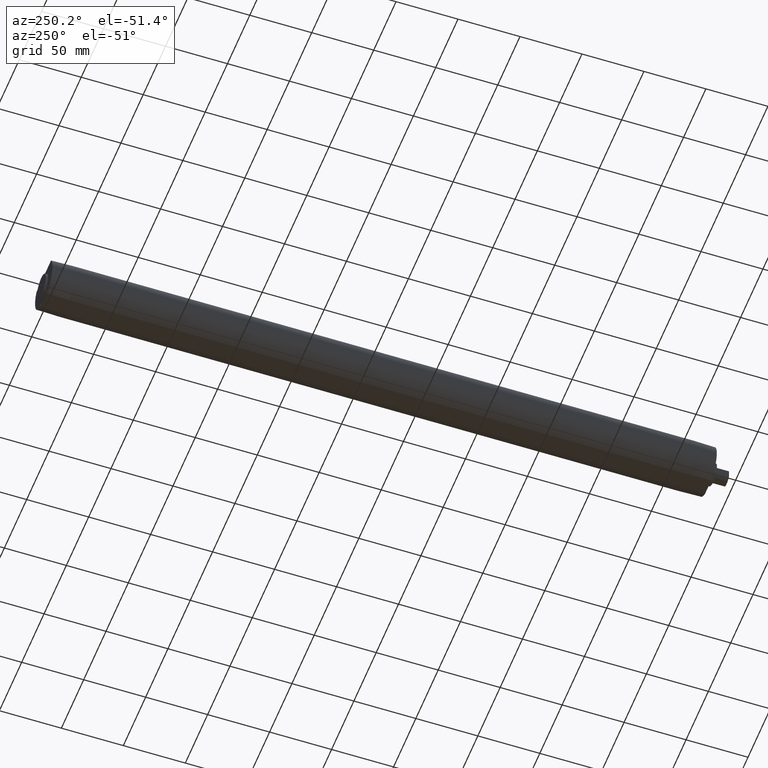
[diagram: clean part render]
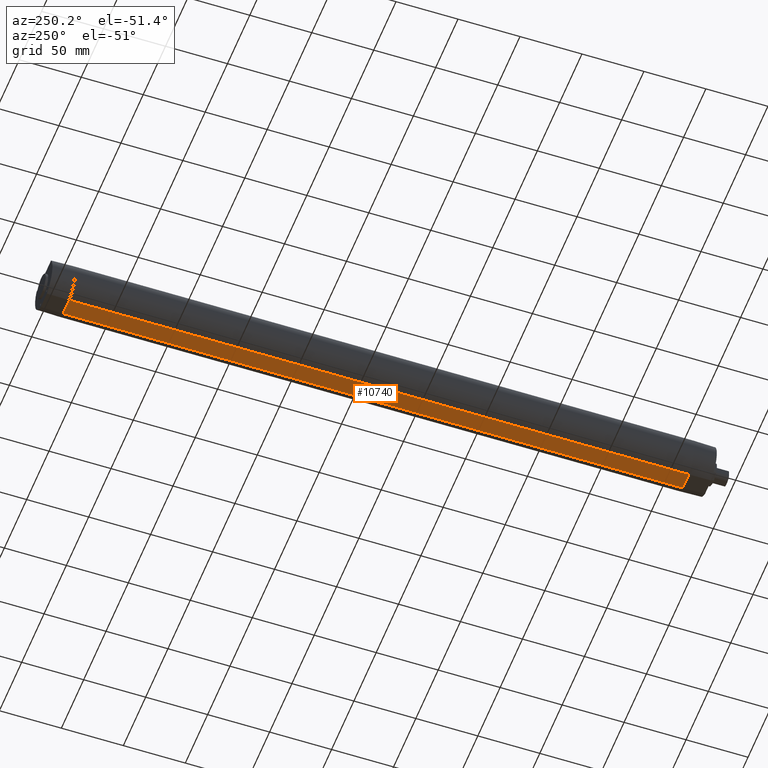
[diagram: same view with one face highlighted and labeled with its STEP entity id]
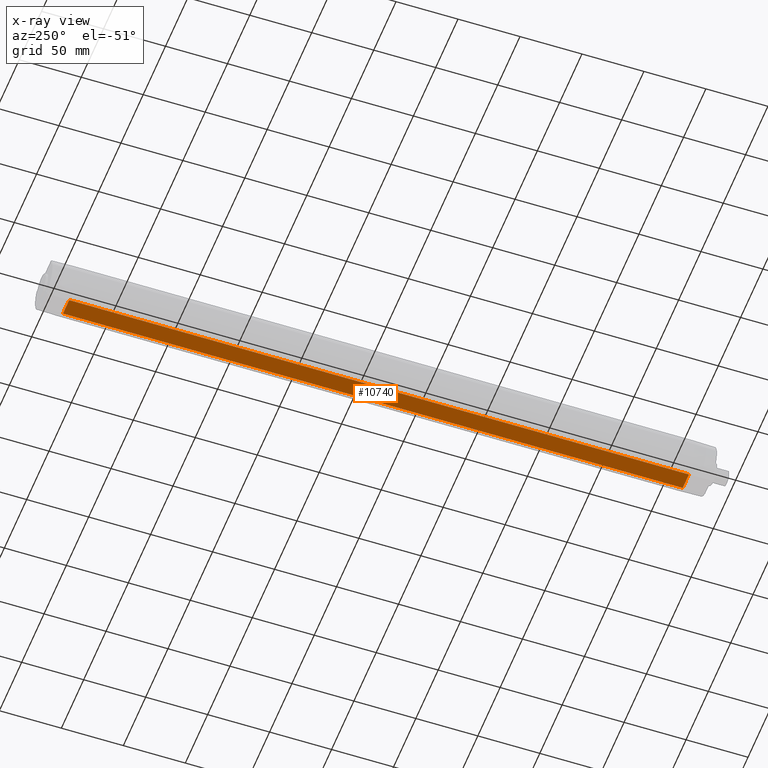
[diagram: x-ray of the same camera — body ghosted, the highlighted face saturated]
A machine part, auxiliary view. The second image highlights one B-rep face of the part: STEP entity #10740.
The next image is the same camera in x-ray: the body ghosted, the highlighted face saturated — about 0% of this face is hidden behind the body in this view.
In plain terms, the highlighted planar face has unit normal (0, 0, -1).
Its self-contained STEP definition (entity closure, byte-faithful):
#5450=CARTESIAN_POINT('',(-6.95970545353755,-18.75,-250.));
#5460=VERTEX_POINT('',#5450);
#5640=CARTESIAN_POINT('',(-6.95970545353753,-18.75,250.));
#5650=VERTEX_POINT('',#5640);
#5680=CARTESIAN_POINT('',(-6.95970545353753,-18.75,-75.));
#5690=DIRECTION('',(0.,0.,1.));
#5700=VECTOR('',#5690,1.);
#5710=LINE('',#5680,#5700);
#5720=EDGE_CURVE('',#5460,#5650,#5710,.T.);
#10300=CARTESIAN_POINT('',(6.95970545353752,-18.75,-250.));
#10310=VERTEX_POINT('',#10300);
#10340=CARTESIAN_POINT('',(6.95970545353754,-18.75,75.));
#10350=DIRECTION('',(0.,0.,-1.));
#10360=VECTOR('',#10350,1.);
#10370=LINE('',#10340,#10360);
#10380=CARTESIAN_POINT('',(6.95970545353751,-18.75,250.));
#10390=VERTEX_POINT('',#10380);
#10400=EDGE_CURVE('',#10390,#10310,#10370,.T.);
#10530=CARTESIAN_POINT('',(-6.95970545353754,-18.75,-250.));
#10540=DIRECTION('',(0.,-1.,0.));
#10550=DIRECTION('',(0.,0.,-1.));
#10560=AXIS2_PLACEMENT_3D('',#10530,#10540,#10550);
#10570=PLANE('',#10560);
#10580=CARTESIAN_POINT('',(-6.95970545353754,-18.75,-250.));
#10590=DIRECTION('',(1.,0.,0.));
#10600=VECTOR('',#10590,1.);
#10610=LINE('',#10580,#10600);
#10620=EDGE_CURVE('',#5460,#10310,#10610,.T.);
#10630=ORIENTED_EDGE('',*,*,#10620,.T.);
#10640=ORIENTED_EDGE('',*,*,#5720,.F.);
#10650=CARTESIAN_POINT('',(6.95970545353754,-18.75,250.));
#10660=DIRECTION('',(-1.,0.,0.));
#10670=VECTOR('',#10660,1.);
#10680=LINE('',#10650,#10670);
#10690=EDGE_CURVE('',#10390,#5650,#10680,.T.);
#10700=ORIENTED_EDGE('',*,*,#10690,.T.);
#10710=ORIENTED_EDGE('',*,*,#10400,.F.);
#10720=EDGE_LOOP('',(#10710,#10700,#10640,#10630));
#10730=FACE_OUTER_BOUND('',#10720,.T.);
#10740=ADVANCED_FACE('',(#10730),#10570,.T.);